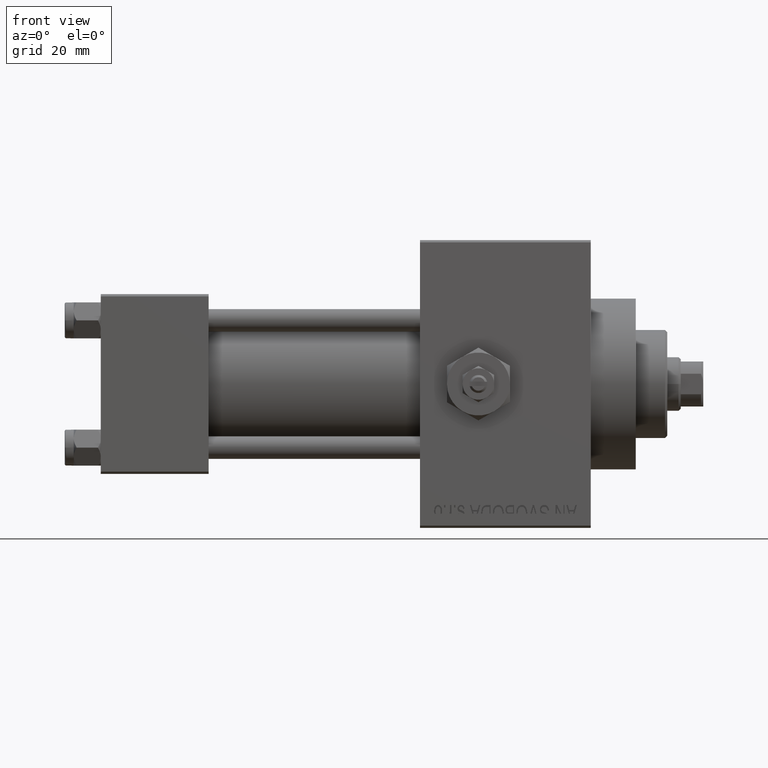
[diagram: clean part render]
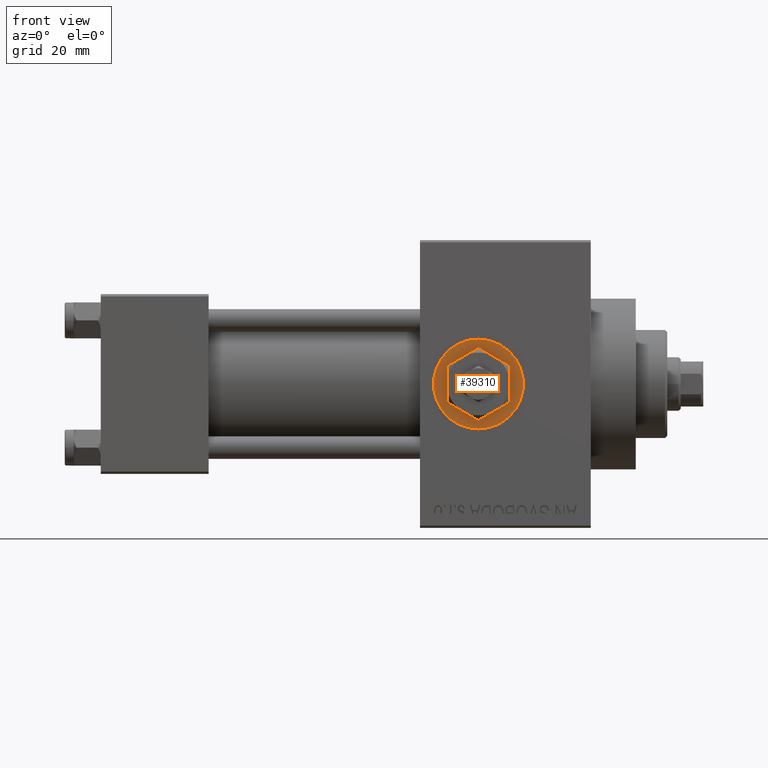
[diagram: same view with one face highlighted and labeled with its STEP entity id]
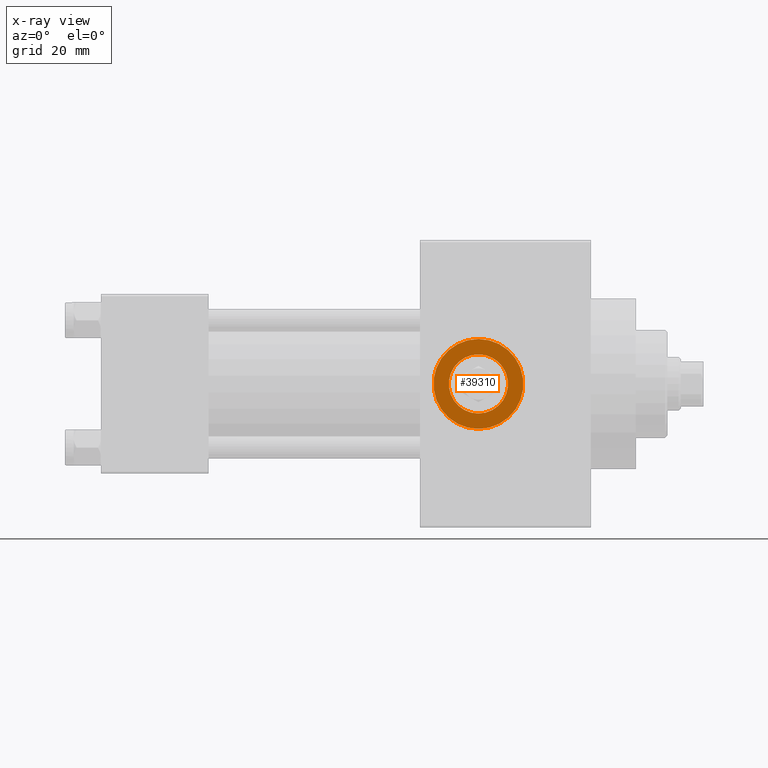
[diagram: x-ray of the same camera — body ghosted, the highlighted face saturated]
A machine part, front view. The second image highlights one B-rep face of the part: STEP entity #39310.
The next image is the same camera in x-ray: the body ghosted, the highlighted face saturated — about 0% of this face is hidden behind the body in this view.
In plain terms, the highlighted planar face has unit normal (0, -1, -0).
Its self-contained STEP definition (entity closure, byte-faithful):
#105 = ORIENTED_EDGE ( 'NONE', *, *, #23431, .F. ) ;
#451 = ORIENTED_EDGE ( 'NONE', *, *, #48419, .T. ) ;
#598 = DIRECTION ( 'NONE',  ( 0.000000000000000000, -1.000000000000000000, -8.673617379884036705E-17 ) ) ;
#2984 = CARTESIAN_POINT ( 'NONE',  ( 84.00000000000000000, -19.80000000000000071, 9.999999999999994671 ) ) ;
#3140 = EDGE_LOOP ( 'NONE', ( #451, #3821 ) ) ;
#3744 = DIRECTION ( 'NONE',  ( 0.000000000000000000, -1.000000000000000000, -8.673617379884036705E-17 ) ) ;
#3821 = ORIENTED_EDGE ( 'NONE', *, *, #11120, .T. ) ;
#4532 = AXIS2_PLACEMENT_3D ( 'NONE', #37719, #14704, #44902 ) ;
#4802 = DIRECTION ( 'NONE',  ( 0.000000000000000000, 8.673617379884036705E-17, -1.000000000000000000 ) ) ;
#5388 = DIRECTION ( 'NONE',  ( 0.000000000000000000, -1.000000000000000000, -8.673617379884036705E-17 ) ) ;
#6364 = EDGE_LOOP ( 'NONE', ( #105, #34087 ) ) ;
#6730 = CARTESIAN_POINT ( 'NONE',  ( 84.00000000000000000, -19.80000000000000071, -1.717376241217039418E-15 ) ) ;
#8520 = FACE_OUTER_BOUND ( 'NONE', #3140, .T. ) ;
#10522 = CARTESIAN_POINT ( 'NONE',  ( 84.00000000000000000, -19.80000000000000071, -1.717376241217039418E-15 ) ) ;
#11120 = EDGE_CURVE ( 'NONE', #48231, #34595, #12867, .T. ) ;
#12867 = CIRCLE ( 'NONE', #41317, 9.999999999999994671 ) ;
#13973 = DIRECTION ( 'NONE',  ( 0.000000000000000000, 0.000000000000000000, -1.000000000000000000 ) ) ;
#14704 = DIRECTION ( 'NONE',  ( 0.000000000000000000, -1.000000000000000000, -8.673617379884036705E-17 ) ) ;
#14736 = AXIS2_PLACEMENT_3D ( 'NONE', #6730, #3744, #33206 ) ;
#20267 = CIRCLE ( 'NONE', #31363, 6.580000000000001847 ) ;
#20480 = DIRECTION ( 'NONE',  ( 0.000000000000000000, 0.000000000000000000, -1.000000000000000000 ) ) ;
#23431 = EDGE_CURVE ( 'NONE', #32505, #36796, #38443, .T. ) ;
#23698 = CARTESIAN_POINT ( 'NONE',  ( 84.00000000000000000, -19.80000000000000071, 1.734723475976807403E-17 ) ) ;
#23884 = EDGE_CURVE ( 'NONE', #36796, #32505, #20267, .T. ) ;
#24930 = CARTESIAN_POINT ( 'NONE',  ( 84.00000000000000000, -19.80000000000000071, -9.999999999999994671 ) ) ;
#27017 = AXIS2_PLACEMENT_3D ( 'NONE', #38720, #598, #4802 ) ;
#31363 = AXIS2_PLACEMENT_3D ( 'NONE', #10522, #43430, #13973 ) ;
#32505 = VERTEX_POINT ( 'NONE', #35708 ) ;
#33206 = DIRECTION ( 'NONE',  ( 0.000000000000000000, 0.000000000000000000, -1.000000000000000000 ) ) ;
#34087 = ORIENTED_EDGE ( 'NONE', *, *, #23884, .F. ) ;
#34595 = VERTEX_POINT ( 'NONE', #24930 ) ;
#35708 = CARTESIAN_POINT ( 'NONE',  ( 84.00000000000000000, -19.80000000000000071, -6.580000000000003624 ) ) ;
#36796 = VERTEX_POINT ( 'NONE', #40368 ) ;
#37719 = CARTESIAN_POINT ( 'NONE',  ( 84.00000000000000000, -19.80000000000000071, 1.734723475976807403E-17 ) ) ;
#38443 = CIRCLE ( 'NONE', #14736, 6.580000000000001847 ) ;
#38720 = CARTESIAN_POINT ( 'NONE',  ( 84.00000000000000000, -19.80000000000000071, 1.734723475976807403E-17 ) ) ;
#39310 = ADVANCED_FACE ( 'NONE', ( #42423, #8520 ), #46618, .T. ) ;
#40368 = CARTESIAN_POINT ( 'NONE',  ( 84.00000000000000000, -19.80000000000000071, 6.580000000000000071 ) ) ;
#41317 = AXIS2_PLACEMENT_3D ( 'NONE', #23698, #5388, #20480 ) ;
#42423 = FACE_BOUND ( 'NONE', #6364, .T. ) ;
#43430 = DIRECTION ( 'NONE',  ( 0.000000000000000000, -1.000000000000000000, -8.673617379884036705E-17 ) ) ;
#44902 = DIRECTION ( 'NONE',  ( 0.000000000000000000, 0.000000000000000000, -1.000000000000000000 ) ) ;
#46392 = CIRCLE ( 'NONE', #4532, 9.999999999999994671 ) ;
#46618 = PLANE ( 'NONE',  #27017 ) ;
#48231 = VERTEX_POINT ( 'NONE', #2984 ) ;
#48419 = EDGE_CURVE ( 'NONE', #34595, #48231, #46392, .T. ) ;